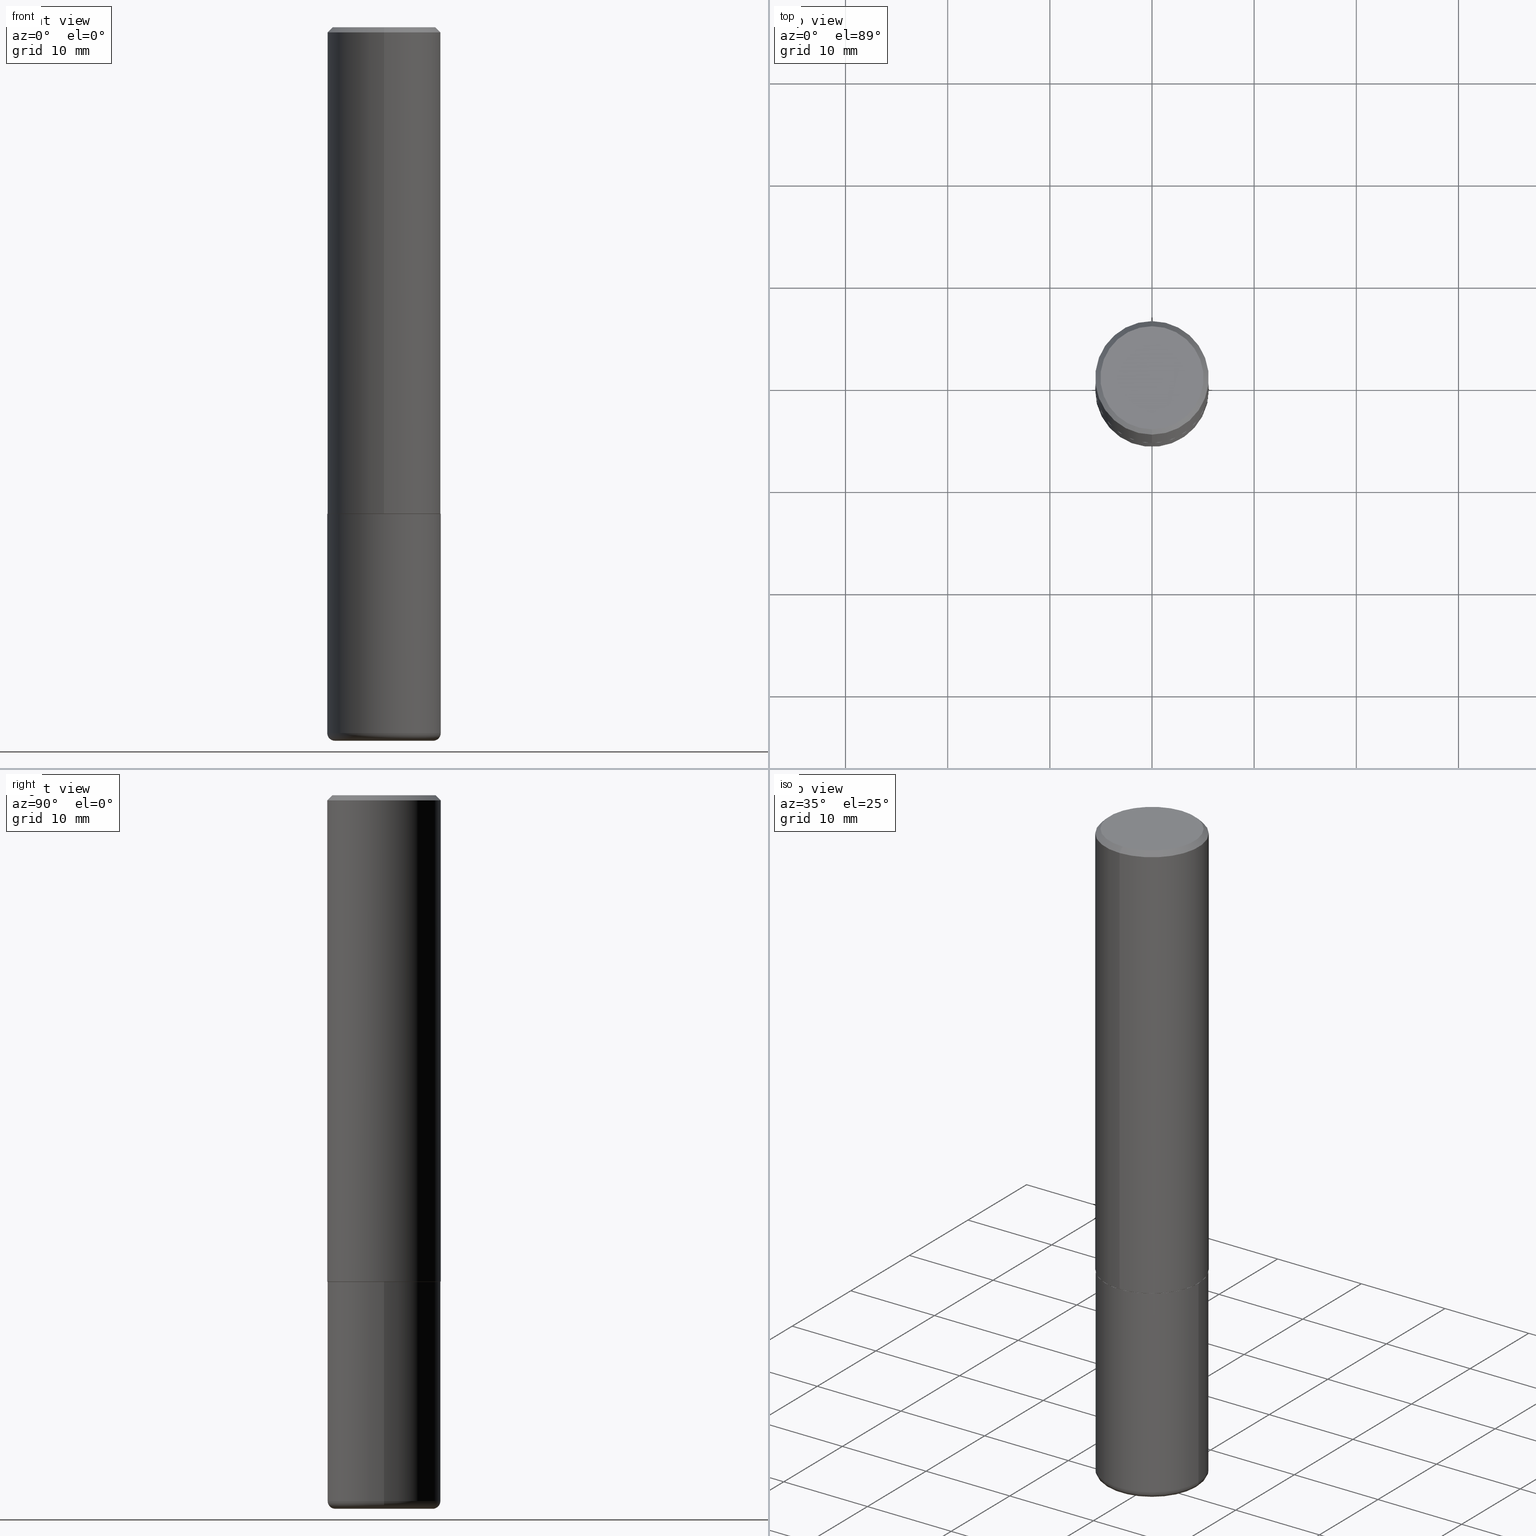
[diagram: canonical four-view strip — front | top / right | iso, engineering-drawing reading convention]
A machine part, canonical four-view strip (front | top / right | iso — engineering-drawing reading convention). The complete STEP part file that produces these views, byte-faithful:
ISO-10303-21;
HEADER;
FILE_DESCRIPTION (( 'STEP AP203' ),
    '1' );
FILE_NAME ('37167.STEP',
    '2024-03-01T21:25:17',
    ( '' ),
    ( '' ),
    'SwSTEP 2.0',
    'SolidWorks 2023',
    '' );
FILE_SCHEMA (( 'CONFIG_CONTROL_DESIGN' ));
ENDSEC;

DATA;
#1 = AXIS2_PLACEMENT_3D ( 'NONE', #410, #306, #135 ) ;
#2 = CIRCLE ( 'NONE', #88, 0.2187499999999999445 ) ;
#3 = EDGE_CURVE ( 'NONE', #72, #81, #6, .T. ) ;
#4 = ORIENTED_EDGE ( 'NONE', *, *, #330, .T. ) ;
#5 = EDGE_CURVE ( 'NONE', #14, #292, #167, .T. ) ;
#6 = LINE ( 'NONE', #400, #317 ) ;
#7 = CARTESIAN_POINT ( 'NONE',  ( 1.554312234475242822E-15, 0.2187499999999936440, -1.874000000000000776 ) ) ;
#8 = EDGE_CURVE ( 'NONE', #292, #326, #172, .T. ) ;
#9 = ORIENTED_EDGE ( 'NONE', *, *, #284, .F. ) ;
#10 = ORIENTED_EDGE ( 'NONE', *, *, #353, .F. ) ;
#11 = ORIENTED_EDGE ( 'NONE', *, *, #82, .F. ) ;
#12 = CARTESIAN_POINT ( 'NONE',  ( 4.890065245181030653E-31, -6.984211957153406209E-17, -0.02000000000000009062 ) ) ;
#13 = FACE_OUTER_BOUND ( 'NONE', #35, .T. ) ;
#14 = VERTEX_POINT ( 'NONE', #371 ) ;
#15 = FACE_OUTER_BOUND ( 'NONE', #230, .T. ) ;
#16 = CARTESIAN_POINT ( 'NONE',  ( 0.000000000000000000, 0.000000000000000000, 0.000000000000000000 ) ) ;
#17 = AXIS2_PLACEMENT_3D ( 'NONE', #357, #229, #359 ) ;
#18 = ORIENTED_EDGE ( 'NONE', *, *, #53, .F. ) ;
#19 = CARTESIAN_POINT ( 'NONE',  ( -1.500733937012521346E-15, -0.2187500000000000278, -0.01999999999999932734 ) ) ;
#20 = PLANE ( 'NONE',  #244 ) ;
#21 = VERTEX_POINT ( 'NONE', #19 ) ;
#22 = DIRECTION ( 'NONE',  ( -2.445468806185136597E-29, 3.491481338843145583E-15, 1.000000000000000000 ) ) ;
#23 = AXIS2_PLACEMENT_3D ( 'NONE', #258, #295, #227 ) ;
#24 = LOCAL_TIME ( 16, 25, 17.00000000000000000, #113 ) ;
#25 = DIRECTION ( 'NONE',  ( 5.024295867788404755E-15, 0.7071067811865981989, 0.7071067811864968355 ) ) ;
#26 = PERSON_AND_ORGANIZATION ( #287, #129 ) ;
#27 = EDGE_CURVE ( 'NONE', #78, #200, #58, .T. ) ;
#28 = AXIS2_PLACEMENT_3D ( 'NONE', #257, #392, #299 ) ;
#29 = DIRECTION ( 'NONE',  ( -2.445032622590504256E-29, 3.492105978576687648E-15, 1.000000000000000000 ) ) ;
#30 = AXIS2_PLACEMENT_3D ( 'NONE', #16, #320, #42 ) ;
#31 = ADVANCED_FACE ( 'NONE', ( #374 ), #217, .T. ) ;
#32 = CIRCLE ( 'NONE', #67, 0.1887500000000000011 ) ;
#33 = CARTESIAN_POINT ( 'NONE',  ( 4.585254011597131119E-29, -6.546527510330898707E-15, -1.875000000000000000 ) ) ;
#34 = ADVANCED_FACE ( 'NONE', ( #44 ), #249, .T. ) ;
#35 = EDGE_LOOP ( 'NONE', ( #288, #365, #98, #108 ) ) ;
#36 = PERSON_AND_ORGANIZATION_ROLE ( 'classification_officer' ) ;
#37 = VERTEX_POINT ( 'NONE', #198 ) ;
#38 = CARTESIAN_POINT ( 'NONE',  ( -0.2187500000000000000, -6.467366141516908442E-15, -1.875000000000000000 ) ) ;
#39 = CARTESIAN_POINT ( 'NONE',  ( 4.585254011597131119E-29, -6.546527510330898707E-15, -1.875000000000000000 ) ) ;
#40 = CIRCLE ( 'NONE', #282, 0.2177499999999999991 ) ;
#41 = EDGE_LOOP ( 'NONE', ( #102, #166, #349, #220 ) ) ;
#42 = DIRECTION ( 'NONE',  ( 1.000000000000000000, -6.982962677686266711E-15, 4.876176775795935232E-29 ) ) ;
#43 = ORIENTED_EDGE ( 'NONE', *, *, #150, .T. ) ;
#44 = FACE_OUTER_BOUND ( 'NONE', #251, .T. ) ;
#45 = DIRECTION ( 'NONE',  ( -2.445032622590504256E-29, 3.492105978576687648E-15, 1.000000000000000000 ) ) ;
#46 = CYLINDRICAL_SURFACE ( 'NONE', #30, 0.2187500000000000278 ) ;
#47 = ORIENTED_EDGE ( 'NONE', *, *, #82, .T. ) ;
#48 = CARTESIAN_POINT ( 'NONE',  ( 4.584436167357195620E-29, -6.547698709831289980E-15, -1.875000000000000000 ) ) ;
#49 = EDGE_CURVE ( 'NONE', #385, #72, #40, .T. ) ;
#50 = CYLINDRICAL_SURFACE ( 'NONE', #417, 0.2187500000000000833 ) ;
#51 = CARTESIAN_POINT ( 'NONE',  ( 0.1887500000000000011, -1.091960788723193160E-14, -2.749999999999999556 ) ) ;
#52 = PRODUCT_DEFINITION_SHAPE ( 'NONE', 'NONE',  #61 ) ;
#53 = EDGE_CURVE ( 'NONE', #72, #385, #138, .T. ) ;
#54 = DIRECTION ( 'NONE',  ( -4.851104656540950075E-15, -0.7071067811865480168, -0.7071067811865469066 ) ) ;
#55 = LENGTH_MEASURE_WITH_UNIT ( LENGTH_MEASURE( 0.02539999999999999897 ), #76 );
#56 = DIRECTION ( 'NONE',  ( -2.445468806185136597E-29, 3.491481338843145583E-15, 1.000000000000000000 ) ) ;
#57 = PLANE ( 'NONE',  #1 ) ;
#58 = CIRCLE ( 'NONE', #360, 0.1887500000000000011 ) ;
#59 = SECURITY_CLASSIFICATION ( '', '', #195 ) ;
#60 = CALENDAR_DATE ( 2024, 1, 3 ) ;
#61 = PRODUCT_DEFINITION ( 'UNKNOWN', '', #283, #94 ) ;
#62 = AXIS2_PLACEMENT_3D ( 'NONE', #48, #146, #264 ) ;
#63 = CALENDAR_DATE ( 2024, 1, 3 ) ;
#64 = EDGE_LOOP ( 'NONE', ( #296, #154, #145, #405 ) ) ;
#65 = ADVANCED_FACE ( 'NONE', ( #144 ), #57, .T. ) ;
#66 = AXIS2_PLACEMENT_3D ( 'NONE', #164, #206, #404 ) ;
#67 = AXIS2_PLACEMENT_3D ( 'NONE', #370, #56, #269 ) ;
#68 = EDGE_CURVE ( 'NONE', #78, #292, #273, .T. ) ;
#69 = DIRECTION ( 'NONE',  ( -2.445032622590504256E-29, 3.492105978576687648E-15, 1.000000000000000000 ) ) ;
#70 = VERTEX_POINT ( 'NONE', #334 ) ;
#71 = FACE_OUTER_BOUND ( 'NONE', #153, .T. ) ;
#72 = VERTEX_POINT ( 'NONE', #301 ) ;
#73 = CARTESIAN_POINT ( 'NONE',  ( 0.2187500000000000000, -8.074050596074770339E-15, -1.875000000000000000 ) ) ;
#74 = PLANE ( 'NONE',  #17 ) ;
#75 = ORIENTED_EDGE ( 'NONE', *, *, #302, .T. ) ;
#76 =( LENGTH_UNIT ( ) NAMED_UNIT ( * ) SI_UNIT ( $, .METRE. ) );
#77 = PERSON_AND_ORGANIZATION_ROLE ( 'design_supplier' ) ;
#78 = VERTEX_POINT ( 'NONE', #51 ) ;
#79 = ADVANCED_FACE ( 'NONE', ( #110 ), #131, .T. ) ;
#80 = CARTESIAN_POINT ( 'NONE',  ( 6.725039217009123399E-29, -9.601573681818648281E-15, -2.749999999999999556 ) ) ;
#81 = VERTEX_POINT ( 'NONE', #90 ) ;
#82 = EDGE_CURVE ( 'NONE', #356, #70, #346, .T. ) ;
#83 = CC_DESIGN_SECURITY_CLASSIFICATION ( #59, ( #283 ) ) ;
#84 = ORIENTED_EDGE ( 'NONE', *, *, #185, .F. ) ;
#85 = DIRECTION ( 'NONE',  ( 1.000000000000000000, -6.982962677686271444E-15, 0.000000000000000000 ) ) ;
#86 = PERSON_AND_ORGANIZATION_ROLE ( 'design_owner' ) ;
#87 = DIRECTION ( 'NONE',  ( 2.445032622590503976E-29, -3.492105978576687648E-15, -1.000000000000000000 ) ) ;
#88 = AXIS2_PLACEMENT_3D ( 'NONE', #12, #136, #396 ) ;
#89 = ADVANCED_FACE ( 'NONE', ( #126 ), #407, .T. ) ;
#90 = CARTESIAN_POINT ( 'NONE',  ( -1.527523085743826075E-15, -0.2187500000000067446, -1.873999999999999222 ) ) ;
#91 = CC_DESIGN_PERSON_AND_ORGANIZATION_ASSIGNMENT ( #324, #77, ( #283 ) ) ;
#92 = DIRECTION ( 'NONE',  ( -2.445032622590504256E-29, 3.492105978576687648E-15, 1.000000000000000000 ) ) ;
#93 = ADVANCED_FACE ( 'NONE', ( #322 ), #399, .F. ) ;
#94 = DESIGN_CONTEXT ( 'detailed design', #104, 'design' ) ;
#95 = AXIS2_PLACEMENT_3D ( 'NONE', #33, #327, #291 ) ;
#96 = DIRECTION ( 'NONE',  ( 6.982962677686265922E-15, 1.000000000000000000, -3.492862791899308860E-15 ) ) ;
#97 = ADVANCED_FACE ( 'NONE', ( #394 ), #329, .T. ) ;
#98 = ORIENTED_EDGE ( 'NONE', *, *, #8, .T. ) ;
#99 = CARTESIAN_POINT ( 'NONE',  ( -1.527523085743871237E-15, -0.2187500000000000833, 7.638981828136507804E-16 ) ) ;
#100 = VECTOR ( 'NONE', #29, 39.37007874015748143 ) ;
#101 = CC_DESIGN_APPROVAL ( #235, ( #283 ) ) ;
#102 = ORIENTED_EDGE ( 'NONE', *, *, #125, .F. ) ;
#103 = DIRECTION ( 'NONE',  ( 1.000000000000000000, -6.982962677686271444E-15, 0.000000000000000000 ) ) ;
#104 = APPLICATION_CONTEXT ( 'configuration controlled 3d designs of mechanical parts and assemblies' ) ;
#105 = APPROVAL ( #170, 'UNSPECIFIED' ) ;
#106 = FACE_OUTER_BOUND ( 'NONE', #189, .T. ) ;
#107 = DIRECTION ( 'NONE',  ( 1.000000000000000000, -6.982962677686266711E-15, 4.876176775795935232E-29 ) ) ;
#108 = ORIENTED_EDGE ( 'NONE', *, *, #330, .F. ) ;
#109 = CIRCLE ( 'NONE', #28, 0.2187500000000001943 ) ;
#110 = FACE_OUTER_BOUND ( 'NONE', #272, .T. ) ;
#111 = FACE_OUTER_BOUND ( 'NONE', #64, .T. ) ;
#112 = APPROVAL_PERSON_ORGANIZATION ( #411, #105, #276 ) ;
#113 = COORDINATED_UNIVERSAL_TIME_OFFSET ( 5, 0, .BEHIND. ) ;
#114 = ORIENTED_EDGE ( 'NONE', *, *, #225, .F. ) ;
#115 = ORIENTED_EDGE ( 'NONE', *, *, #225, .T. ) ;
#116 = APPROVAL_STATUS ( 'not_yet_approved' ) ;
#117 = CARTESIAN_POINT ( 'NONE',  ( 0.2187500000000000278, -1.527523085743871040E-15, 1.066663669705361025E-29 ) ) ;
#118 = CARTESIAN_POINT ( 'NONE',  ( 4.585254011597131119E-29, -6.546527510330898707E-15, -1.875000000000000000 ) ) ;
#119 = APPROVAL_ROLE ( '' ) ;
#120 = UNCERTAINTY_MEASURE_WITH_UNIT (LENGTH_MEASURE( 1.000000000000000082E-05 ), #340, 'distance_accuracy_value', 'NONE');
#121 = APPLICATION_CONTEXT ( 'configuration controlled 3d designs of mechanical parts and assemblies' ) ;
#122 = AXIS2_PLACEMENT_3D ( 'NONE', #406, #22, #85 ) ;
#123 = AXIS2_PLACEMENT_3D ( 'NONE', #332, #242, #278 ) ;
#124 = AXIS2_PLACEMENT_3D ( 'NONE', #307, #45, #413 ) ;
#125 = EDGE_CURVE ( 'NONE', #200, #14, #388, .T. ) ;
#126 = FACE_OUTER_BOUND ( 'NONE', #161, .T. ) ;
#127 = APPLICATION_PROTOCOL_DEFINITION ( 'international standard', 'config_control_design', 1994, #104 ) ;
#128 = AXIS2_PLACEMENT_3D ( 'NONE', #39, #263, #143 ) ;
#129 = ORGANIZATION ( 'UNSPECIFIED', 'UNSPECIFIED', '' ) ;
#130 = ORIENTED_EDGE ( 'NONE', *, *, #416, .F. ) ;
#131 = CONICAL_SURFACE ( 'NONE', #369, 0.2187499999999999445, 0.7853981633974456145 ) ;
#132 = ORIENTED_EDGE ( 'NONE', *, *, #49, .F. ) ;
#133 = DIRECTION ( 'NONE',  ( -6.982962677686265922E-15, -1.000000000000000000, 3.492105978576688042E-15 ) ) ;
#134 = ORIENTED_EDGE ( 'NONE', *, *, #27, .F. ) ;
#135 = DIRECTION ( 'NONE',  ( -1.000000000000000000, 6.982962677686265922E-15, -4.876176775795935793E-29 ) ) ;
#136 = DIRECTION ( 'NONE',  ( -2.445032622590504256E-29, 3.492105978576687648E-15, 1.000000000000000000 ) ) ;
#137 = ORIENTED_EDGE ( 'NONE', *, *, #279, .T. ) ;
#138 = CIRCLE ( 'NONE', #62, 0.2177499999999999991 ) ;
#139 = VECTOR ( 'NONE', #54, 39.37007874015748854 ) ;
#140 = EDGE_CURVE ( 'NONE', #81, #356, #109, .T. ) ;
#141 = CARTESIAN_POINT ( 'NONE',  ( 6.651675152823572126E-29, -9.496829241653356490E-15, -2.719999999999999751 ) ) ;
#142 = ORIENTED_EDGE ( 'NONE', *, *, #140, .F. ) ;
#143 = DIRECTION ( 'NONE',  ( -1.000000000000000000, 6.982962677686265922E-15, -4.876176775795935793E-29 ) ) ;
#144 = FACE_OUTER_BOUND ( 'NONE', #391, .T. ) ;
#145 = ORIENTED_EDGE ( 'NONE', *, *, #3, .T. ) ;
#146 = DIRECTION ( 'NONE',  ( -2.445032622590504256E-29, 3.492105978576687648E-15, 1.000000000000000000 ) ) ;
#147 = CIRCLE ( 'NONE', #378, 0.2187499999999999445 ) ;
#148 =( GEOMETRIC_REPRESENTATION_CONTEXT ( 3 ) GLOBAL_UNCERTAINTY_ASSIGNED_CONTEXT ( ( #120 ) ) GLOBAL_UNIT_ASSIGNED_CONTEXT ( ( #340, #403, #298 ) ) REPRESENTATION_CONTEXT ( 'NONE', 'WORKASPACE' ) );
#149 = PERSON_AND_ORGANIZATION_ROLE ( 'creator' ) ;
#150 = EDGE_CURVE ( 'NONE', #70, #21, #147, .T. ) ;
#151 = VECTOR ( 'NONE', #25, 39.37007874015748143 ) ;
#152 = DIRECTION ( 'NONE',  ( 0.000000000000000000, 0.000000000000000000, 1.000000000000000000 ) ) ;
#153 = EDGE_LOOP ( 'NONE', ( #318, #361 ) ) ;
#154 = ORIENTED_EDGE ( 'NONE', *, *, #49, .T. ) ;
#155 = COORDINATED_UNIVERSAL_TIME_OFFSET ( 5, 0, .BEHIND. ) ;
#156 = DIRECTION ( 'NONE',  ( -6.982962677686265922E-15, -1.000000000000000000, 3.492862791899308860E-15 ) ) ;
#157 = CC_DESIGN_PERSON_AND_ORGANIZATION_ASSIGNMENT ( #418, #245, ( #283 ) ) ;
#158 = ORIENTED_EDGE ( 'NONE', *, *, #150, .F. ) ;
#159 = CLOSED_SHELL ( 'NONE', ( #290, #31, #93, #182, #212, #65 ) ) ;
#160 = CC_DESIGN_APPROVAL ( #105, ( #59 ) ) ;
#161 = EDGE_LOOP ( 'NONE', ( #190, #137, #142, #350 ) ) ;
#162 = ORIENTED_EDGE ( 'NONE', *, *, #68, .F. ) ;
#163 = CARTESIAN_POINT ( 'NONE',  ( 0.000000000000000000, 0.000000000000000000, 0.000000000000000000 ) ) ;
#164 = CARTESIAN_POINT ( 'NONE',  ( 6.651675152823572126E-29, -9.496829241653356490E-15, -2.719999999999999751 ) ) ;
#165 = APPROVAL ( #219, 'UNSPECIFIED' ) ;
#166 = ORIENTED_EDGE ( 'NONE', *, *, #416, .T. ) ;
#167 = CIRCLE ( 'NONE', #122, 0.2187500000000000278 ) ;
#168 = DIRECTION ( 'NONE',  ( 1.000000000000000000, -6.982962677686269866E-15, 0.000000000000000000 ) ) ;
#169 = DIRECTION ( 'NONE',  ( 1.000000000000000000, -6.982962677686272233E-15, 0.000000000000000000 ) ) ;
#170 = APPROVAL_STATUS ( 'not_yet_approved' ) ;
#171 = CARTESIAN_POINT ( 'NONE',  ( -0.2187500000000000278, 1.554312234475219354E-15, -1.076017050993260762E-29 ) ) ;
#172 = LINE ( 'NONE', #117, #201 ) ;
#173 = APPROVAL_DATE_TIME ( #335, #105 ) ;
#174 = LINE ( 'NONE', #375, #151 ) ;
#175 = DIRECTION ( 'NONE',  ( -4.937700262164884886E-15, -0.7071067811865933139, 0.7071067811865017205 ) ) ;
#176 = CALENDAR_DATE ( 2024, 1, 3 ) ;
#177 = CARTESIAN_POINT ( 'NONE',  ( 1.457693458967008925E-15, 0.1987500000000002320, -9.585796904813013388E-16 ) ) ;
#178 = LOCAL_TIME ( 16, 25, 17.00000000000000000, #280 ) ;
#179 = DATE_TIME_ROLE ( 'classification_date' ) ;
#180 = DIRECTION ( 'NONE',  ( 1.000000000000000000, 0.000000000000000000, 0.000000000000000000 ) ) ;
#181 = DIRECTION ( 'NONE',  ( 2.445032622590504256E-29, -3.492105978576687648E-15, -1.000000000000000000 ) ) ;
#182 = ADVANCED_FACE ( 'NONE', ( #13 ), #46, .T. ) ;
#183 = APPLICATION_PROTOCOL_DEFINITION ( 'international standard', 'config_control_design', 1994, #121 ) ;
#184 = APPROVAL_PERSON_ORGANIZATION ( #248, #165, #383 ) ;
#185 = EDGE_CURVE ( 'NONE', #292, #14, #343, .T. ) ;
#186 = ORIENTED_EDGE ( 'NONE', *, *, #259, .T. ) ;
#187 = AXIS2_PLACEMENT_3D ( 'NONE', #141, #390, #103 ) ;
#188 = AXIS2_PLACEMENT_3D ( 'NONE', #222, #69, #289 ) ;
#189 = EDGE_LOOP ( 'NONE', ( #18, #132 ) ) ;
#190 = ORIENTED_EDGE ( 'NONE', *, *, #53, .T. ) ;
#191 = CLOSED_SHELL ( 'NONE', ( #89, #412, #79, #34, #97, #345, #203, #205 ) ) ;
#192 = APPROVAL_PERSON_ORGANIZATION ( #408, #235, #119 ) ;
#193 = LINE ( 'NONE', #265, #293 ) ;
#194 = ORIENTED_EDGE ( 'NONE', *, *, #185, .T. ) ;
#195 = SECURITY_CLASSIFICATION_LEVEL ( 'unclassified' ) ;
#196 = DIRECTION ( 'NONE',  ( -2.445032622590504256E-29, 3.492105978576687648E-15, 1.000000000000000000 ) ) ;
#197 = VERTEX_POINT ( 'NONE', #38 ) ;
#198 = CARTESIAN_POINT ( 'NONE',  ( -1.432128957034807395E-15, -0.1987500000000002320, 4.295324360029333057E-16 ) ) ;
#199 = DIRECTION ( 'NONE',  ( -2.445032622590504256E-29, 3.492105978576687648E-15, 1.000000000000000000 ) ) ;
#200 = VERTEX_POINT ( 'NONE', #226 ) ;
#201 = VECTOR ( 'NONE', #239, 39.37007874015748143 ) ;
#202 = DIRECTION ( 'NONE',  ( -2.445468806185136597E-29, 3.491481338843145583E-15, 1.000000000000000000 ) ) ;
#203 = ADVANCED_FACE ( 'NONE', ( #106 ), #74, .F. ) ;
#204 = LINE ( 'NONE', #336, #139 ) ;
#205 = ADVANCED_FACE ( 'NONE', ( #71 ), #20, .F. ) ;
#206 = DIRECTION ( 'NONE',  ( -2.445468806185136597E-29, 3.491481338843145583E-15, 1.000000000000000000 ) ) ;
#207 = DATE_AND_TIME ( #389, #379 ) ;
#208 = LINE ( 'NONE', #171, #305 ) ;
#209 = DIRECTION ( 'NONE',  ( -2.445032622590504256E-29, 3.492105978576687648E-15, 1.000000000000000000 ) ) ;
#210 = CARTESIAN_POINT ( 'NONE',  ( 6.467688980457750273E-45, -9.237445401567455569E-31, -2.645236272391840412E-16 ) ) ;
#211 = DATE_AND_TIME ( #63, #314 ) ;
#212 = ADVANCED_FACE ( 'NONE', ( #277 ), #300, .T. ) ;
#213 = MECHANICAL_CONTEXT ( 'NONE', #121, 'mechanical' ) ;
#214 = CALENDAR_DATE ( 2024, 1, 3 ) ;
#215 = DIRECTION ( 'NONE',  ( -6.982962677686265922E-15, -1.000000000000000000, 3.763740060157423393E-15 ) ) ;
#216 = APPROVAL_DATE_TIME ( #232, #235 ) ;
#217 = TOROIDAL_SURFACE ( 'NONE', #66, 0.1887500000000000011, 0.02999999999999971440 ) ;
#218 = AXIS2_PLACEMENT_3D ( 'NONE', #210, #373, #338 ) ;
#219 = APPROVAL_STATUS ( 'not_yet_approved' ) ;
#220 = ORIENTED_EDGE ( 'NONE', *, *, #5, .F. ) ;
#221 = VERTEX_POINT ( 'NONE', #177 ) ;
#222 = CARTESIAN_POINT ( 'NONE',  ( 4.584436167357195620E-29, -6.547698709831289980E-15, -1.875000000000000000 ) ) ;
#223 = AXIS2_PLACEMENT_3D ( 'NONE', #270, #395, #168 ) ;
#224 = CC_DESIGN_APPROVAL ( #165, ( #61 ) ) ;
#225 = EDGE_CURVE ( 'NONE', #326, #197, #255, .T. ) ;
#226 = CARTESIAN_POINT ( 'NONE',  ( -0.1887500000000000011, -8.101470637624799929E-15, -2.749999999999999556 ) ) ;
#227 = DIRECTION ( 'NONE',  ( -1.000000000000000000, 7.105427357600993970E-15, 0.000000000000000000 ) ) ;
#228 = CARTESIAN_POINT ( 'NONE',  ( 0.2187499999999998890, -1.102435232739722812E-14, -2.719999999999999751 ) ) ;
#229 = DIRECTION ( 'NONE',  ( -2.445032622590503976E-29, 3.492105978576687648E-15, 1.000000000000000000 ) ) ;
#230 = EDGE_LOOP ( 'NONE', ( #363, #47, #319, #10 ) ) ;
#231 = AXIS2_PLACEMENT_3D ( 'NONE', #366, #285, #133 ) ;
#232 = DATE_AND_TIME ( #214, #24 ) ;
#233 = DIRECTION ( 'NONE',  ( 6.982962677686265922E-15, 1.000000000000000000, -3.492862791899308860E-15 ) ) ;
#234 = ORIENTED_EDGE ( 'NONE', *, *, #243, .F. ) ;
#235 = APPROVAL ( #116, 'UNSPECIFIED' ) ;
#236 = ORIENTED_EDGE ( 'NONE', *, *, #380, .T. ) ;
#237 = AXIS2_PLACEMENT_3D ( 'NONE', #118, #309, #364 ) ;
#238 = DIRECTION ( 'NONE',  ( -2.445468806185136877E-29, 3.491481338843145188E-15, 1.000000000000000000 ) ) ;
#239 = DIRECTION ( 'NONE',  ( -2.445468806185136877E-29, 3.491481338843145188E-15, 1.000000000000000000 ) ) ;
#240 = CARTESIAN_POINT ( 'NONE',  ( 1.387863832190147008E-15, 0.1987500000000002320, -8.263178768617095401E-16 ) ) ;
#241 = CARTESIAN_POINT ( 'NONE',  ( 1.550759520796464998E-15, 0.2177499999999934210, -1.875000000000000888 ) ) ;
#242 = DIRECTION ( 'NONE',  ( -2.445468806185136597E-29, 3.491481338843145583E-15, 1.000000000000000000 ) ) ;
#243 = EDGE_CURVE ( 'NONE', #221, #37, #347, .T. ) ;
#244 = AXIS2_PLACEMENT_3D ( 'NONE', #240, #87, #271 ) ;
#245 = PERSON_AND_ORGANIZATION_ROLE ( 'creator' ) ;
#246 = CARTESIAN_POINT ( 'NONE',  ( 4.584436167357195620E-29, -6.547698709831289980E-15, -1.875000000000000000 ) ) ;
#247 = CC_DESIGN_DATE_AND_TIME_ASSIGNMENT ( #207, #179, ( #59 ) ) ;
#248 = PERSON_AND_ORGANIZATION ( #287, #129 ) ;
#249 = CONICAL_SURFACE ( 'NONE', #397, 0.2187499999999999445, 0.7853981633974456145 ) ;
#250 = CIRCLE ( 'NONE', #218, 0.1987500000000002320 ) ;
#251 = EDGE_LOOP ( 'NONE', ( #316, #234, #75, #43 ) ) ;
#252 = LINE ( 'NONE', #99, #409 ) ;
#253 = EDGE_CURVE ( 'NONE', #37, #21, #204, .T. ) ;
#254 = ORIENTED_EDGE ( 'NONE', *, *, #302, .F. ) ;
#255 = CIRCLE ( 'NONE', #237, 0.2187500000000000000 ) ;
#256 = ORIENTED_EDGE ( 'NONE', *, *, #125, .T. ) ;
#257 = CARTESIAN_POINT ( 'NONE',  ( 4.581991134734604485E-29, -6.544206603852712761E-15, -1.874000000000000110 ) ) ;
#258 = CARTESIAN_POINT ( 'NONE',  ( -0.1887500000000000011, -8.155679827906167578E-15, -2.719999999999999751 ) ) ;
#259 = EDGE_CURVE ( 'NONE', #14, #197, #208, .T. ) ;
#260 = CARTESIAN_POINT ( 'NONE',  ( 0.000000000000000000, 0.000000000000000000, 0.000000000000000000 ) ) ;
#261 = CARTESIAN_POINT ( 'NONE',  ( 4.890065245181030653E-31, -6.984211957153406209E-17, -0.02000000000000009062 ) ) ;
#262 = EDGE_LOOP ( 'NONE', ( #328, #256, #84, #162 ) ) ;
#263 = DIRECTION ( 'NONE',  ( 2.438088387897960049E-29, -3.491481338843145188E-15, -1.000000000000000000 ) ) ;
#264 = DIRECTION ( 'NONE',  ( -6.982962677686265922E-15, -1.000000000000000000, 3.763740060157423393E-15 ) ) ;
#265 = CARTESIAN_POINT ( 'NONE',  ( 1.527523085743870843E-15, 0.2187499999999998890, -0.02000000000000085390 ) ) ;
#266 = AXIS2_PLACEMENT_3D ( 'NONE', #260, #393, #107 ) ;
#267 = MANIFOLD_SOLID_BREP ( 'Body-Move/Copy2[1]', #159 ) ;
#268 = ORIENTED_EDGE ( 'NONE', *, *, #253, .T. ) ;
#269 = DIRECTION ( 'NONE',  ( 1.000000000000000000, -6.982962677686272233E-15, 0.000000000000000000 ) ) ;
#270 = CARTESIAN_POINT ( 'NONE',  ( 0.1887500000000000011, -1.081486344706663980E-14, -2.719999999999999751 ) ) ;
#271 = DIRECTION ( 'NONE',  ( 6.982962677686265922E-15, 1.000000000000000000, -3.492105978576687648E-15 ) ) ;
#272 = EDGE_LOOP ( 'NONE', ( #9, #268, #398, #254 ) ) ;
#273 = CIRCLE ( 'NONE', #223, 0.02999999999999971440 ) ;
#274 = AXIS2_PLACEMENT_3D ( 'NONE', #402, #199, #367 ) ;
#275 = CARTESIAN_POINT ( 'NONE',  ( 4.890065245181030653E-31, -6.984211957153406209E-17, -0.02000000000000009062 ) ) ;
#276 = APPROVAL_ROLE ( '' ) ;
#277 = FACE_OUTER_BOUND ( 'NONE', #41, .T. ) ;
#278 = DIRECTION ( 'NONE',  ( 1.000000000000000000, -6.982962677686262766E-15, 4.883557194083112340E-29 ) ) ;
#279 = EDGE_CURVE ( 'NONE', #385, #356, #174, .T. ) ;
#280 = COORDINATED_UNIVERSAL_TIME_OFFSET ( 5, 0, .BEHIND. ) ;
#281 = PRODUCT_RELATED_PRODUCT_CATEGORY ( 'detail', '', ( #377 ) ) ;
#282 = AXIS2_PLACEMENT_3D ( 'NONE', #331, #337, #303 ) ;
#283 = PRODUCT_DEFINITION_FORMATION_WITH_SPECIFIED_SOURCE ( 'ANY', '', #377, .NOT_KNOWN. ) ;
#284 = EDGE_CURVE ( 'NONE', #37, #221, #250, .T. ) ;
#285 = DIRECTION ( 'NONE',  ( -2.445032622590504256E-29, 3.492105978576687648E-15, 1.000000000000000000 ) ) ;
#286 = CIRCLE ( 'NONE', #95, 0.2187500000000000000 ) ;
#287 = PERSON ( 'UNSPECIFIED', 'UNSPECIFIED', 'UNSPECIFIED', ('UNSPECIFIED'), ('UNSPECIFIED'), ('UNSPECIFIED') ) ;
#288 = ORIENTED_EDGE ( 'NONE', *, *, #259, .F. ) ;
#289 = DIRECTION ( 'NONE',  ( -6.982962677686265922E-15, -1.000000000000000000, 3.763740060157423393E-15 ) ) ;
#290 = ADVANCED_FACE ( 'NONE', ( #381 ), #297, .T. ) ;
#291 = DIRECTION ( 'NONE',  ( 1.000000000000000000, -6.982962677686267499E-15, 0.000000000000000000 ) ) ;
#292 = VERTEX_POINT ( 'NONE', #228 ) ;
#293 = VECTOR ( 'NONE', #355, 39.37007874015748854 ) ;
#294 = DATE_TIME_ROLE ( 'creation_date' ) ;
#295 = DIRECTION ( 'NONE',  ( 7.105427357601001859E-15, 1.000000000000000000, -3.491481338843145583E-15 ) ) ;
#296 = ORIENTED_EDGE ( 'NONE', *, *, #279, .F. ) ;
#297 = CYLINDRICAL_SURFACE ( 'NONE', #266, 0.2187500000000000278 ) ;
#298 =( NAMED_UNIT ( * ) SI_UNIT ( $, .STERADIAN. ) SOLID_ANGLE_UNIT ( ) );
#299 = DIRECTION ( 'NONE',  ( -6.982962677686265922E-15, -1.000000000000000000, 3.746534391310986401E-15 ) ) ;
#300 = TOROIDAL_SURFACE ( 'NONE', #123, 0.1887500000000000011, 0.02999999999999971440 ) ;
#301 = CARTESIAN_POINT ( 'NONE',  ( -1.520540123066138483E-15, -0.2177500000000065494, -1.874999999999999334 ) ) ;
#302 = EDGE_CURVE ( 'NONE', #221, #70, #193, .T. ) ;
#303 = DIRECTION ( 'NONE',  ( -6.982962677686265922E-15, -1.000000000000000000, 3.763740060157423393E-15 ) ) ;
#304 = AXIS2_PLACEMENT_3D ( 'NONE', #246, #92, #215 ) ;
#305 = VECTOR ( 'NONE', #238, 39.37007874015748143 ) ;
#306 = DIRECTION ( 'NONE',  ( 2.438088387897960049E-29, -3.491481338843145188E-15, -1.000000000000000000 ) ) ;
#307 = CARTESIAN_POINT ( 'NONE',  ( 4.581991134734604485E-29, -6.544206603852712761E-15, -1.874000000000000110 ) ) ;
#308 = SHAPE_DEFINITION_REPRESENTATION ( #52, #382 ) ;
#309 = DIRECTION ( 'NONE',  ( -2.445468806185136597E-29, 3.491481338843145583E-15, 1.000000000000000000 ) ) ;
#310 = CARTESIAN_POINT ( 'NONE',  ( 4.890065245181030653E-31, -6.984211957153406209E-17, -0.02000000000000009062 ) ) ;
#311 = CC_DESIGN_DATE_AND_TIME_ASSIGNMENT ( #414, #294, ( #61 ) ) ;
#312 = PERSON_AND_ORGANIZATION ( #287, #129 ) ;
#313 = CARTESIAN_POINT ( 'NONE',  ( 1.554312234475219551E-15, 0.2187500000000000833, -7.638981828136507804E-16 ) ) ;
#314 = LOCAL_TIME ( 16, 25, 17.00000000000000000, #348 ) ;
#315 = CC_DESIGN_PERSON_AND_ORGANIZATION_ASSIGNMENT ( #312, #86, ( #377 ) ) ;
#316 = ORIENTED_EDGE ( 'NONE', *, *, #253, .F. ) ;
#317 = VECTOR ( 'NONE', #175, 39.37007874015748143 ) ;
#318 = ORIENTED_EDGE ( 'NONE', *, *, #243, .T. ) ;
#319 = ORIENTED_EDGE ( 'NONE', *, *, #339, .F. ) ;
#320 = DIRECTION ( 'NONE',  ( -2.445468806185136597E-29, 3.491481338843145583E-15, 1.000000000000000000 ) ) ;
#321 = CC_DESIGN_PERSON_AND_ORGANIZATION_ASSIGNMENT ( #401, #36, ( #59 ) ) ;
#322 = FACE_OUTER_BOUND ( 'NONE', #323, .T. ) ;
#323 = EDGE_LOOP ( 'NONE', ( #115, #4 ) ) ;
#324 = PERSON_AND_ORGANIZATION ( #287, #129 ) ;
#325 = CIRCLE ( 'NONE', #124, 0.2187500000000001943 ) ;
#326 = VERTEX_POINT ( 'NONE', #73 ) ;
#327 = DIRECTION ( 'NONE',  ( -2.445468806185136597E-29, 3.491481338843145583E-15, 1.000000000000000000 ) ) ;
#328 = ORIENTED_EDGE ( 'NONE', *, *, #27, .T. ) ;
#329 = CYLINDRICAL_SURFACE ( 'NONE', #231, 0.2187500000000000833 ) ;
#330 = EDGE_CURVE ( 'NONE', #197, #326, #286, .T. ) ;
#331 = CARTESIAN_POINT ( 'NONE',  ( 4.584436167357195620E-29, -6.547698709831289980E-15, -1.875000000000000000 ) ) ;
#332 = CARTESIAN_POINT ( 'NONE',  ( 6.651675152823572126E-29, -9.496829241653356490E-15, -2.719999999999999751 ) ) ;
#333 = EDGE_LOOP ( 'NONE', ( #11, #236, #368, #158 ) ) ;
#334 = CARTESIAN_POINT ( 'NONE',  ( 1.527523085743870843E-15, 0.2187499999999998890, -0.02000000000000085390 ) ) ;
#335 = DATE_AND_TIME ( #176, #344 ) ;
#336 = CARTESIAN_POINT ( 'NONE',  ( -1.500733937012521346E-15, -0.2187500000000000278, -0.01999999999999932734 ) ) ;
#337 = DIRECTION ( 'NONE',  ( -2.445032622590504256E-29, 3.492105978576687648E-15, 1.000000000000000000 ) ) ;
#338 = DIRECTION ( 'NONE',  ( -6.982962677686265922E-15, -1.000000000000000000, 3.492105978576687648E-15 ) ) ;
#339 = EDGE_CURVE ( 'NONE', #21, #70, #2, .T. ) ;
#340 =( CONVERSION_BASED_UNIT ( 'INCH', #55 ) LENGTH_UNIT ( ) NAMED_UNIT ( #358 ) );
#341 = DIRECTION ( 'NONE',  ( 2.445032622590504256E-29, -3.492105978576687648E-15, -1.000000000000000000 ) ) ;
#342 = APPROVAL_DATE_TIME ( #211, #165 ) ;
#343 = CIRCLE ( 'NONE', #187, 0.2187500000000000278 ) ;
#344 = LOCAL_TIME ( 16, 25, 17.00000000000000000, #372 ) ;
#345 = ADVANCED_FACE ( 'NONE', ( #111 ), #352, .T. ) ;
#346 = LINE ( 'NONE', #313, #100 ) ;
#347 = CIRCLE ( 'NONE', #274, 0.1987500000000002320 ) ;
#348 = COORDINATED_UNIVERSAL_TIME_OFFSET ( 5, 0, .BEHIND. ) ;
#349 = ORIENTED_EDGE ( 'NONE', *, *, #68, .T. ) ;
#350 = ORIENTED_EDGE ( 'NONE', *, *, #3, .F. ) ;
#351 = DIRECTION ( 'NONE',  ( -2.445032622590504256E-29, 3.492105978576687648E-15, 1.000000000000000000 ) ) ;
#352 = CONICAL_SURFACE ( 'NONE', #188, 0.2177499999999999991, 0.7853981633975165577 ) ;
#353 = EDGE_CURVE ( 'NONE', #81, #21, #252, .T. ) ;
#354 = ORIENTED_EDGE ( 'NONE', *, *, #8, .F. ) ;
#355 = DIRECTION ( 'NONE',  ( 4.937700262164533843E-15, 0.7071067811865431318, -0.7071067811865517916 ) ) ;
#356 = VERTEX_POINT ( 'NONE', #7 ) ;
#357 = CARTESIAN_POINT ( 'NONE',  ( 4.584436167357195620E-29, -6.547698709831289980E-15, -1.875000000000000000 ) ) ;
#358 = DIMENSIONAL_EXPONENTS ( 1.000000000000000000, 0.000000000000000000, 0.000000000000000000, 0.000000000000000000, 0.000000000000000000, 0.000000000000000000, 0.000000000000000000 ) ;
#359 = DIRECTION ( 'NONE',  ( -6.982962677686265922E-15, -1.000000000000000000, 3.492105978576687648E-15 ) ) ;
#360 = AXIS2_PLACEMENT_3D ( 'NONE', #80, #202, #169 ) ;
#361 = ORIENTED_EDGE ( 'NONE', *, *, #284, .T. ) ;
#362 = DIRECTION ( 'NONE',  ( -6.982962677686265922E-15, -1.000000000000000000, 3.492105978576688042E-15 ) ) ;
#363 = ORIENTED_EDGE ( 'NONE', *, *, #140, .T. ) ;
#364 = DIRECTION ( 'NONE',  ( 1.000000000000000000, -6.982962677686267499E-15, 0.000000000000000000 ) ) ;
#365 = ORIENTED_EDGE ( 'NONE', *, *, #5, .T. ) ;
#366 = CARTESIAN_POINT ( 'NONE',  ( 0.000000000000000000, 0.000000000000000000, 0.000000000000000000 ) ) ;
#367 = DIRECTION ( 'NONE',  ( -6.982962677686265922E-15, -1.000000000000000000, 3.492105978576687648E-15 ) ) ;
#368 = ORIENTED_EDGE ( 'NONE', *, *, #353, .T. ) ;
#369 = AXIS2_PLACEMENT_3D ( 'NONE', #310, #181, #96 ) ;
#370 = CARTESIAN_POINT ( 'NONE',  ( 6.725039217009123399E-29, -9.601573681818648281E-15, -2.749999999999999556 ) ) ;
#371 = CARTESIAN_POINT ( 'NONE',  ( -0.2187499999999998890, -7.942517007178138911E-15, -2.719999999999999751 ) ) ;
#372 = COORDINATED_UNIVERSAL_TIME_OFFSET ( 5, 0, .BEHIND. ) ;
#373 = DIRECTION ( 'NONE',  ( -2.445032622590504256E-29, 3.492105978576687648E-15, 1.000000000000000000 ) ) ;
#374 = FACE_OUTER_BOUND ( 'NONE', #262, .T. ) ;
#375 = CARTESIAN_POINT ( 'NONE',  ( 1.547206807117663705E-15, 0.2177499999999934210, -1.875000000000000888 ) ) ;
#376 = CARTESIAN_POINT ( 'NONE',  ( 0.000000000000000000, 0.000000000000000000, 0.000000000000000000 ) ) ;
#377 = PRODUCT ( '37167', '37167', '', ( #213 ) ) ;
#378 = AXIS2_PLACEMENT_3D ( 'NONE', #261, #196, #156 ) ;
#379 = LOCAL_TIME ( 16, 25, 17.00000000000000000, #155 ) ;
#380 = EDGE_CURVE ( 'NONE', #356, #81, #325, .T. ) ;
#381 = FACE_OUTER_BOUND ( 'NONE', #386, .T. ) ;
#382 = ADVANCED_BREP_SHAPE_REPRESENTATION ( '37167', ( #267, #415, #384 ), #148 ) ;
#383 = APPROVAL_ROLE ( '' ) ;
#384 = AXIS2_PLACEMENT_3D ( 'NONE', #376, #152, #180 ) ;
#385 = VERTEX_POINT ( 'NONE', #241 ) ;
#386 = EDGE_LOOP ( 'NONE', ( #194, #186, #114, #354 ) ) ;
#387 = CC_DESIGN_PERSON_AND_ORGANIZATION_ASSIGNMENT ( #26, #149, ( #61 ) ) ;
#388 = CIRCLE ( 'NONE', #23, 0.02999999999999971440 ) ;
#389 = CALENDAR_DATE ( 2024, 1, 3 ) ;
#390 = DIRECTION ( 'NONE',  ( -2.445468806185136597E-29, 3.491481338843145583E-15, 1.000000000000000000 ) ) ;
#391 = EDGE_LOOP ( 'NONE', ( #134, #130 ) ) ;
#392 = DIRECTION ( 'NONE',  ( -2.445032622590504256E-29, 3.492105978576687648E-15, 1.000000000000000000 ) ) ;
#393 = DIRECTION ( 'NONE',  ( -2.445468806185136597E-29, 3.491481338843145583E-15, 1.000000000000000000 ) ) ;
#394 = FACE_OUTER_BOUND ( 'NONE', #333, .T. ) ;
#395 = DIRECTION ( 'NONE',  ( -6.982962677686266711E-15, -1.000000000000000000, 3.491481338843145583E-15 ) ) ;
#396 = DIRECTION ( 'NONE',  ( -6.982962677686265922E-15, -1.000000000000000000, 3.492862791899308860E-15 ) ) ;
#397 = AXIS2_PLACEMENT_3D ( 'NONE', #275, #341, #233 ) ;
#398 = ORIENTED_EDGE ( 'NONE', *, *, #339, .T. ) ;
#399 = PLANE ( 'NONE',  #128 ) ;
#400 = CARTESIAN_POINT ( 'NONE',  ( -1.520540123066138483E-15, -0.2177500000000065494, -1.874999999999999334 ) ) ;
#401 = PERSON_AND_ORGANIZATION ( #287, #129 ) ;
#402 = CARTESIAN_POINT ( 'NONE',  ( 6.467688980457750273E-45, -9.237445401567455569E-31, -2.645236272391840412E-16 ) ) ;
#403 =( NAMED_UNIT ( * ) PLANE_ANGLE_UNIT ( ) SI_UNIT ( $, .RADIAN. ) );
#404 = DIRECTION ( 'NONE',  ( 1.000000000000000000, -6.982962677686262766E-15, 4.883557194083112340E-29 ) ) ;
#405 = ORIENTED_EDGE ( 'NONE', *, *, #380, .F. ) ;
#406 = CARTESIAN_POINT ( 'NONE',  ( 6.651675152823572126E-29, -9.496829241653356490E-15, -2.719999999999999751 ) ) ;
#407 = CONICAL_SURFACE ( 'NONE', #304, 0.2177499999999999991, 0.7853981633975165577 ) ;
#408 = PERSON_AND_ORGANIZATION ( #287, #129 ) ;
#409 = VECTOR ( 'NONE', #351, 39.37007874015748143 ) ;
#410 = CARTESIAN_POINT ( 'NONE',  ( 1.228372314785856208E-28, -1.641221912200929740E-15, -2.750000000000000000 ) ) ;
#411 = PERSON_AND_ORGANIZATION ( #287, #129 ) ;
#412 = ADVANCED_FACE ( 'NONE', ( #15 ), #50, .T. ) ;
#413 = DIRECTION ( 'NONE',  ( -6.982962677686265922E-15, -1.000000000000000000, 3.746534391310986401E-15 ) ) ;
#414 = DATE_AND_TIME ( #60, #178 ) ;
#415 = MANIFOLD_SOLID_BREP ( 'Body-Move/Copy2[2]', #191 ) ;
#416 = EDGE_CURVE ( 'NONE', #200, #78, #32, .T. ) ;
#417 = AXIS2_PLACEMENT_3D ( 'NONE', #163, #209, #362 ) ;
#418 = PERSON_AND_ORGANIZATION ( #287, #129 ) ;
ENDSEC;
END-ISO-10303-21;
